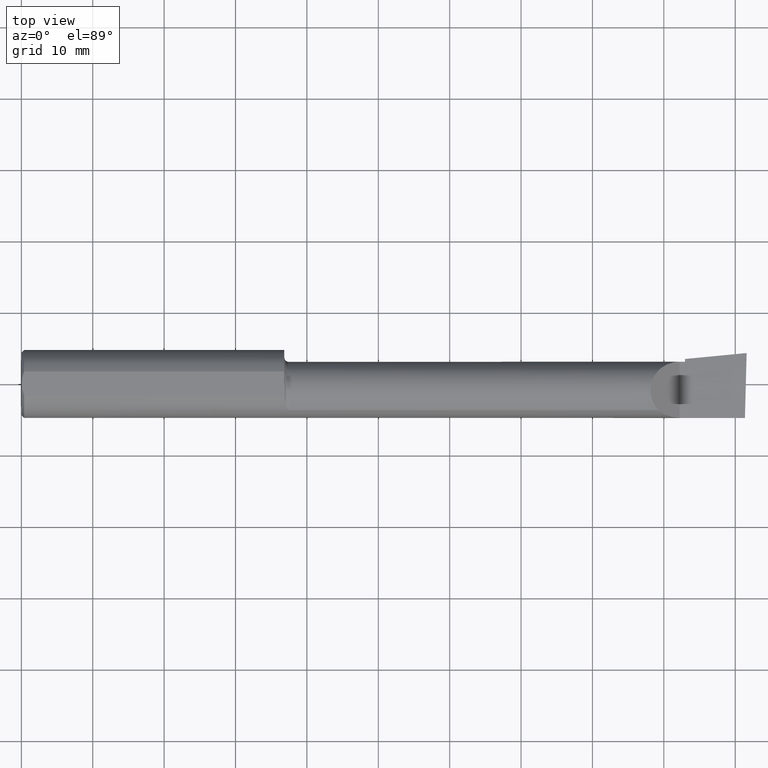
[diagram: clean part render]
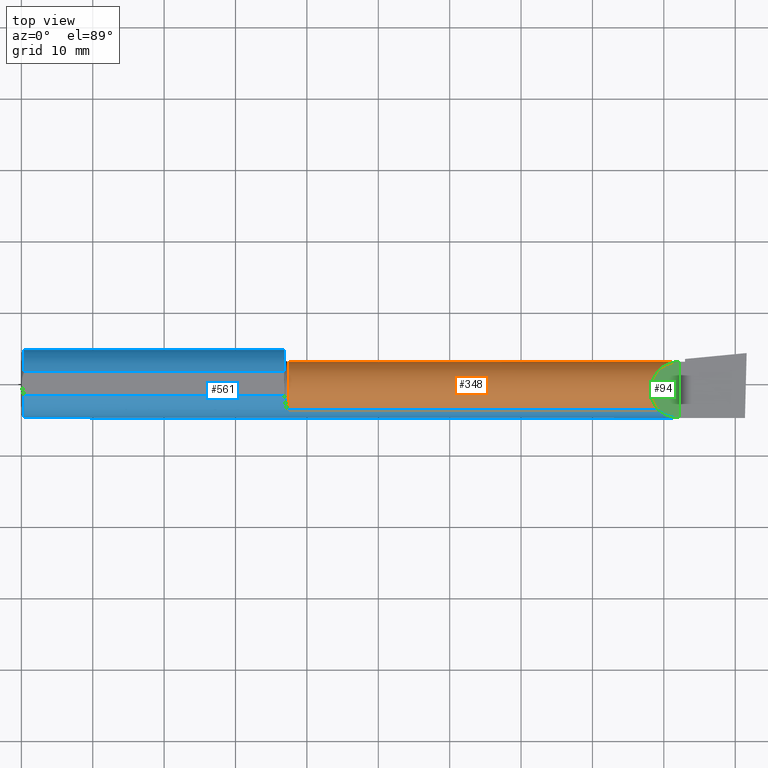
[diagram: same view with three faces highlighted in distinct colors, each labeled with its STEP entity id]
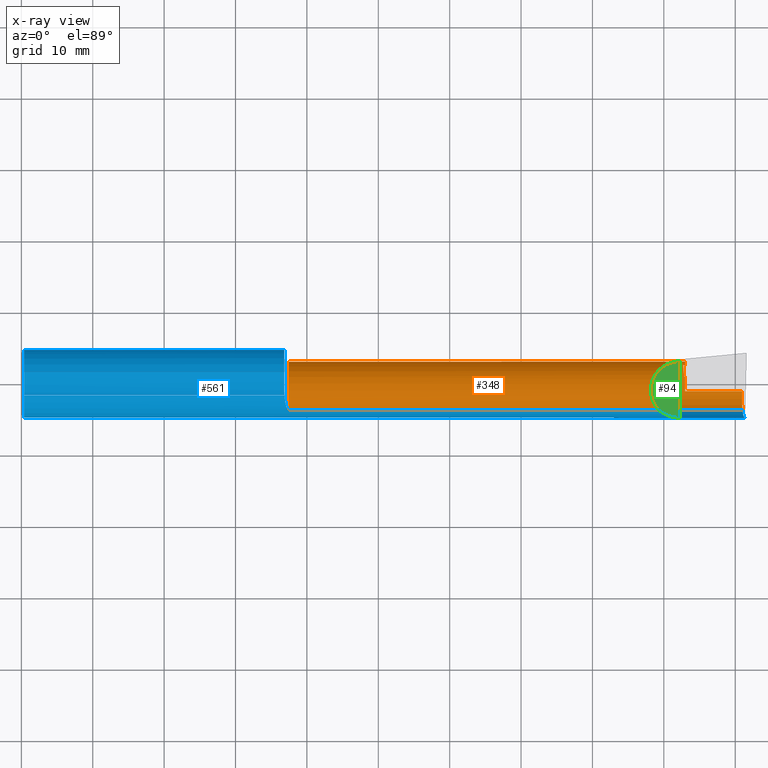
[diagram: x-ray of the same camera — body ghosted, the three highlighted faces saturated]
A machine part, top view with three faces highlighted in distinct colors.
The next image is the same camera in x-ray (body ghosted, the three faces saturated) — at least one of them is partly hidden behind the body in this view.
Their STEP definitions:

[orange] entity #348 — the highlighted cylindrical surface (edge-blend (fillet) strip) has radius 4.0653 mm, axis along (-1, 0, -0).
#3 = ORIENTED_EDGE ( 'NONE', *, *, #588, .F. ) ;
#10 = CARTESIAN_POINT ( 'NONE',  ( 3.653138950307088795, 0.06907189645309849690, -0.1232356714654834345 ) ) ;
#17 = CARTESIAN_POINT ( 'NONE',  ( 3.655646474132026924, 0.04303026584322402343, -0.1383725942388458752 ) ) ;
#28 = CARTESIAN_POINT ( 'NONE',  ( 3.974646882977779239, -0.1156304438478838320, -0.1453804992321581224 ) ) ;
#30 = DIRECTION ( 'NONE',  ( 1.000000000000000000, -4.268512490100411279E-18, 0.000000000000000000 ) ) ;
#36 = EDGE_CURVE ( 'NONE', #358, #354, #172, .T. ) ;
#38 =( BOUNDED_CURVE ( )  B_SPLINE_CURVE ( 3, ( #72, #270, #217, #634 ),
 .UNSPECIFIED., .F., .T. ) 
 B_SPLINE_CURVE_WITH_KNOTS ( ( 4, 4 ),
 ( 2.858349069045824198, 2.874607299638503033 ),
 .UNSPECIFIED. ) 
 CURVE ( )  GEOMETRIC_REPRESENTATION_ITEM ( )  RATIONAL_B_SPLINE_CURVE ( ( 1.000000000000000000, 0.9999779726161355242, 0.9999779726161355242, 1.000000000000000000 ) ) 
 REPRESENTATION_ITEM ( '' )  );
#49 = CYLINDRICAL_SURFACE ( 'NONE', #438, 0.1600499999999999423 ) ;
#61 = CARTESIAN_POINT ( 'NONE',  ( 1.474999999999999867, -0.03739999999999999575, 0.000000000000000000 ) ) ;
#62 = CARTESIAN_POINT ( 'NONE',  ( 4.000000000000000000, -0.03740000000000000269, -0.1600499999999999701 ) ) ;
#72 = CARTESIAN_POINT ( 'NONE',  ( 3.649771696492880135, 0.1040421643832924459, -0.07490071184287706851 ) ) ;
#74 = CARTESIAN_POINT ( 'NONE',  ( 6.831754240405861070E-19, 0.1226499999999999257, 1.790477306702064235E-16 ) ) ;
#76 = CARTESIAN_POINT ( 'NONE',  ( 3.629999999999999893, 0.1226499999999998147, -1.383850883036508279E-16 ) ) ;
#83 = VERTEX_POINT ( 'NONE', #123 ) ;
#100 = FACE_OUTER_BOUND ( 'NONE', #401, .T. ) ;
#108 = EDGE_CURVE ( 'NONE', #157, #550, #482, .T. ) ;
#112 = CARTESIAN_POINT ( 'NONE',  ( 1.474999999999999867, -0.1454917112299472515, -0.1180346748349042907 ) ) ;
#113 = ORIENTED_EDGE ( 'NONE', *, *, #637, .F. ) ;
#118 = CARTESIAN_POINT ( 'NONE',  ( 3.977223734188806592, -0.1454917112299466964, -0.1180346748349052066 ) ) ;
#123 = CARTESIAN_POINT ( 'NONE',  ( 3.655646474132026924, 0.04303026584322402343, -0.1383725942388458752 ) ) ;
#125 = CARTESIAN_POINT ( 'NONE',  ( 2.567499999999999893, -0.1454917112299466964, -0.1180346748349052066 ) ) ;
#130 = CARTESIAN_POINT ( 'NONE',  ( 3.658567235719207833, 0.04367857120546568550, -0.1379942341395748728 ) ) ;
#134 = EDGE_CURVE ( 'NONE', #309, #152, #38, .T. ) ;
#137 = CARTESIAN_POINT ( 'NONE',  ( 3.659999999999999698, 0.04400172171466123355, -0.1378033461200739995 ) ) ;
#152 = VERTEX_POINT ( 'NONE', #275 ) ;
#154 = ORIENTED_EDGE ( 'NONE', *, *, #423, .F. ) ;
#157 = VERTEX_POINT ( 'NONE', #426 ) ;
#163 = DIRECTION ( 'NONE',  ( -1.000000000000000000, 4.268512490100411279E-18, -0.000000000000000000 ) ) ;
#172 = CIRCLE ( 'NONE', #544, 0.1600500000000001921 ) ;
#175 = DIRECTION ( 'NONE',  ( 0.000000000000000000, -1.000000000000000000, 0.000000000000000000 ) ) ;
#186 = DIRECTION ( 'NONE',  ( -4.268512490100411279E-18, -1.000000000000000000, 0.000000000000000000 ) ) ;
#197 = ORIENTED_EDGE ( 'NONE', *, *, #231, .T. ) ;
#204 = EDGE_CURVE ( 'NONE', #553, #474, #381, .T. ) ;
#213 = VECTOR ( 'NONE', #30, 39.37007874015748143 ) ;
#217 = CARTESIAN_POINT ( 'NONE',  ( 3.656688791929345150, 0.1032241022547694537, -0.07643046986498638895 ) ) ;
#219 =( BOUNDED_CURVE ( )  B_SPLINE_CURVE ( 3, ( #633, #383, #486, #76 ),
 .UNSPECIFIED., .F., .F. ) 
 B_SPLINE_CURVE_WITH_KNOTS ( ( 4, 4 ),
 ( 5.541729662751388119, 7.853981633974482790 ),
 .UNSPECIFIED. ) 
 CURVE ( )  GEOMETRIC_REPRESENTATION_ITEM ( )  RATIONAL_B_SPLINE_CURVE ( ( 1.000000000000000000, 0.6019254882129727591, 0.6019254882129727591, 1.000000000000000000 ) ) 
 REPRESENTATION_ITEM ( '' )  );
#231 = EDGE_CURVE ( 'NONE', #309, #83, #409, .T. ) ;
#235 = VECTOR ( 'NONE', #332, 39.37007874015748143 ) ;
#244 =( BOUNDED_CURVE ( )  B_SPLINE_CURVE ( 3, ( #118, #28, #531, #535 ),
 .UNSPECIFIED., .F., .F. ) 
 B_SPLINE_CURVE_WITH_KNOTS ( ( 4, 4 ),
 ( 5.751779107031163463, 6.493234751459365128 ),
 .UNSPECIFIED. ) 
 CURVE ( )  GEOMETRIC_REPRESENTATION_ITEM ( )  RATIONAL_B_SPLINE_CURVE ( ( 1.000000000000000000, 0.9547092712975351336, 0.9547092712975351336, 1.000000000000000000 ) ) 
 REPRESENTATION_ITEM ( '' )  );
#250 = CARTESIAN_POINT ( 'NONE',  ( 0.000000000000000000, -0.03739999999999998881, 0.000000000000000000 ) ) ;
#254 = VECTOR ( 'NONE', #311, 39.37007874015748143 ) ;
#255 = ORIENTED_EDGE ( 'NONE', *, *, #134, .F. ) ;
#258 = EDGE_CURVE ( 'NONE', #474, #152, #629, .T. ) ;
#261 = ORIENTED_EDGE ( 'NONE', *, *, #258, .T. ) ;
#268 = VERTEX_POINT ( 'NONE', #112 ) ;
#270 = CARTESIAN_POINT ( 'NONE',  ( 3.653279282324394472, 0.1036362422309855952, -0.07566725339342778023 ) ) ;
#271 = EDGE_CURVE ( 'NONE', #379, #354, #314, .T. ) ;
#275 = CARTESIAN_POINT ( 'NONE',  ( 3.659999999999999698, 0.1028057716897404633, -0.07719031082256629095 ) ) ;
#291 = CARTESIAN_POINT ( 'NONE',  ( 3.974893613600461340, -0.03740000000000000269, -0.1600499999999999701 ) ) ;
#308 = CIRCLE ( 'NONE', #333, 0.1600499999999996925 ) ;
#309 = VERTEX_POINT ( 'NONE', #656 ) ;
#311 = DIRECTION ( 'NONE',  ( 1.000000000000000000, -4.268512490100411279E-18, 0.000000000000000000 ) ) ;
#314 = LINE ( 'NONE', #62, #343 ) ;
#315 = VERTEX_POINT ( 'NONE', #397 ) ;
#328 = CARTESIAN_POINT ( 'NONE',  ( 3.649771696492880135, 0.1040421643832924459, -0.07490071184287706851 ) ) ;
#332 = DIRECTION ( 'NONE',  ( -1.000000000000000000, 4.268512490100411279E-18, -0.000000000000000000 ) ) ;
#333 = AXIS2_PLACEMENT_3D ( 'NONE', #61, #461, #565 ) ;
#337 = CARTESIAN_POINT ( 'NONE',  ( 3.659999999999999698, -0.03740000000000000269, 0.000000000000000000 ) ) ;
#343 = VECTOR ( 'NONE', #422, 39.37007874015748143 ) ;
#348 = ADVANCED_FACE ( 'NONE', ( #100 ), #49, .T. ) ;
#354 = VERTEX_POINT ( 'NONE', #595 ) ;
#358 = VERTEX_POINT ( 'NONE', #137 ) ;
#363 = ORIENTED_EDGE ( 'NONE', *, *, #108, .T. ) ;
#376 = ORIENTED_EDGE ( 'NONE', *, *, #568, .T. ) ;
#378 = LINE ( 'NONE', #125, #235 ) ;
#379 = VERTEX_POINT ( 'NONE', #291 ) ;
#381 = LINE ( 'NONE', #74, #254 ) ;
#383 = CARTESIAN_POINT ( 'NONE',  ( 3.402393788885675008, -0.02584108761840239049, 0.2276062111143223043 ) ) ;
#397 = CARTESIAN_POINT ( 'NONE',  ( 3.977223734188806592, -0.1454917112299466964, -0.1180346748349052066 ) ) ;
#401 = EDGE_LOOP ( 'NONE', ( #113, #415, #154, #363, #376, #451, #261, #255, #197, #3, #594, #575 ) ) ;
#409 =( BOUNDED_CURVE ( )  B_SPLINE_CURVE ( 3, ( #328, #478, #10, #17 ),
 .UNSPECIFIED., .F., .F. ) 
 B_SPLINE_CURVE_WITH_KNOTS ( ( 4, 4 ),
 ( 0.4870072742240331709, 1.044271234405846016 ),
 .UNSPECIFIED. ) 
 CURVE ( )  GEOMETRIC_REPRESENTATION_ITEM ( )  RATIONAL_B_SPLINE_CURVE ( ( 1.000000000000000000, 0.9742883992832892526, 0.9742883992832892526, 1.000000000000000000 ) ) 
 REPRESENTATION_ITEM ( '' )  );
#415 = ORIENTED_EDGE ( 'NONE', *, *, #630, .T. ) ;
#418 = DIRECTION ( 'NONE',  ( 0.000000000000000000, -1.000000000000000000, 0.000000000000000000 ) ) ;
#422 = DIRECTION ( 'NONE',  ( -1.000000000000000000, 5.691349986800549142E-18, -0.000000000000000000 ) ) ;
#423 = EDGE_CURVE ( 'NONE', #157, #268, #308, .T. ) ;
#426 = CARTESIAN_POINT ( 'NONE',  ( 1.474999999999999867, -0.1454917112299478343, 0.1180346748349037911 ) ) ;
#434 = CARTESIAN_POINT ( 'NONE',  ( 3.657116054444792930, 0.04335475124612595682, -0.1381839842950835506 ) ) ;
#438 = AXIS2_PLACEMENT_3D ( 'NONE', #250, #454, #186 ) ;
#451 = ORIENTED_EDGE ( 'NONE', *, *, #204, .T. ) ;
#454 = DIRECTION ( 'NONE',  ( -1.000000000000000000, 4.268512490100411279E-18, -0.000000000000000000 ) ) ;
#461 = DIRECTION ( 'NONE',  ( -1.000000000000000000, 4.268512490100411279E-18, -0.000000000000000000 ) ) ;
#474 = VERTEX_POINT ( 'NONE', #518 ) ;
#478 = CARTESIAN_POINT ( 'NONE',  ( 3.651129012372396954, 0.08994590001130231549, -0.1015200335213659877 ) ) ;
#482 = LINE ( 'NONE', #533, #213 ) ;
#486 = CARTESIAN_POINT ( 'NONE',  ( 3.467758842172328215, 0.1226499999999999396, 0.1622411578276699295 ) ) ;
#514 = CARTESIAN_POINT ( 'NONE',  ( 3.629999999999999893, 0.1226499999999998147, -1.383850883036508279E-16 ) ) ;
#518 = CARTESIAN_POINT ( 'NONE',  ( 3.659999999999999698, 0.1226500000000001755, 1.790477306702067193E-16 ) ) ;
#526 = CARTESIAN_POINT ( 'NONE',  ( 3.655646474132026924, 0.04303026584322402343, -0.1383725942388458752 ) ) ;
#531 = CARTESIAN_POINT ( 'NONE',  ( 3.973833329693933880, -0.07789060880782654184, -0.1600499999999999701 ) ) ;
#533 = CARTESIAN_POINT ( 'NONE',  ( 2.567499999999999893, -0.1454917112299466964, 0.1180346748349052066 ) ) ;
#535 = CARTESIAN_POINT ( 'NONE',  ( 3.974893613600461340, -0.03740000000000000269, -0.1600499999999999701 ) ) ;
#544 = AXIS2_PLACEMENT_3D ( 'NONE', #337, #638, #175 ) ;
#550 = VERTEX_POINT ( 'NONE', #562 ) ;
#553 = VERTEX_POINT ( 'NONE', #514 ) ;
#562 = CARTESIAN_POINT ( 'NONE',  ( 3.511965325165093521, -0.1454917112299462245, 0.1180346748349056230 ) ) ;
#565 = DIRECTION ( 'NONE',  ( 0.000000000000000000, -1.000000000000000000, 0.000000000000000000 ) ) ;
#568 = EDGE_CURVE ( 'NONE', #550, #553, #219, .T. ) ;
#575 = ORIENTED_EDGE ( 'NONE', *, *, #271, .F. ) ;
#577 = CARTESIAN_POINT ( 'NONE',  ( 3.659999999999999698, -0.03740000000000000269, 0.000000000000000000 ) ) ;
#587 = CARTESIAN_POINT ( 'NONE',  ( 3.659999999999999698, 0.04400172171466123355, -0.1378033461200739995 ) ) ;
#588 = EDGE_CURVE ( 'NONE', #358, #83, #611, .T. ) ;
#590 = AXIS2_PLACEMENT_3D ( 'NONE', #577, #163, #418 ) ;
#594 = ORIENTED_EDGE ( 'NONE', *, *, #36, .T. ) ;
#595 = CARTESIAN_POINT ( 'NONE',  ( 3.659999999999999698, -0.03740000000000000269, -0.1600499999999999701 ) ) ;
#611 =( BOUNDED_CURVE ( )  B_SPLINE_CURVE ( 3, ( #587, #130, #434, #526 ),
 .UNSPECIFIED., .F., .F. ) 
 B_SPLINE_CURVE_WITH_KNOTS ( ( 4, 4 ),
 ( 3.408578007541087196, 3.415613029227634989 ),
 .UNSPECIFIED. ) 
 CURVE ( )  GEOMETRIC_REPRESENTATION_ITEM ( )  RATIONAL_B_SPLINE_CURVE ( ( 1.000000000000000000, 0.9999958757100749773, 0.9999958757100749773, 1.000000000000000000 ) ) 
 REPRESENTATION_ITEM ( '' )  );
#629 = CIRCLE ( 'NONE', #590, 0.1600500000000001921 ) ;
#630 = EDGE_CURVE ( 'NONE', #315, #268, #378, .T. ) ;
#633 = CARTESIAN_POINT ( 'NONE',  ( 3.511965325165093521, -0.1454917112299462245, 0.1180346748349056230 ) ) ;
#634 = CARTESIAN_POINT ( 'NONE',  ( 3.659999999999999698, 0.1028057716897404633, -0.07719031082256629095 ) ) ;
#637 = EDGE_CURVE ( 'NONE', #315, #379, #244, .T. ) ;
#638 = DIRECTION ( 'NONE',  ( -1.000000000000000000, 4.268512490100411279E-18, -0.000000000000000000 ) ) ;
#656 = CARTESIAN_POINT ( 'NONE',  ( 3.649771696492880135, 0.1040421643832924459, -0.07490071184287706851 ) ) ;

[blue] entity #561 — the highlighted cylindrical surface (edge-blend (fillet) strip) has radius 4.7587 mm, axis along (-1, -0, -0).
#2 = CARTESIAN_POINT ( 'NONE',  ( 0.01499999999999999424, 0.000000000000000000, 0.000000000000000000 ) ) ;
#6 = ORIENTED_EDGE ( 'NONE', *, *, #487, .F. ) ;
#7 = CARTESIAN_POINT ( 'NONE',  ( 3.511965325165093521, -0.1454917112299462245, 0.1180346748349056230 ) ) ;
#9 = CARTESIAN_POINT ( 'NONE',  ( 1.450000000000000178, 0.06597272163553663527, 0.1753499999999999781 ) ) ;
#13 = AXIS2_PLACEMENT_3D ( 'NONE', #262, #421, #360 ) ;
#15 = ORIENTED_EDGE ( 'NONE', *, *, #630, .F. ) ;
#18 = EDGE_CURVE ( 'NONE', #601, #157, #642, .T. ) ;
#19 = VERTEX_POINT ( 'NONE', #386 ) ;
#22 = CARTESIAN_POINT ( 'NONE',  ( 1.458327409769773375, -0.1182546610979341717, 0.1455684145307624688 ) ) ;
#27 = CARTESIAN_POINT ( 'NONE',  ( 1.474999999999999867, -0.1454917112299478343, 0.1180346748349037911 ) ) ;
#30 = DIRECTION ( 'NONE',  ( 1.000000000000000000, -4.268512490100411279E-18, 0.000000000000000000 ) ) ;
#35 = CARTESIAN_POINT ( 'NONE',  ( 1.474999999999999867, -0.1454917112299472515, -0.1180346748349042907 ) ) ;
#41 = CARTESIAN_POINT ( 'NONE',  ( 1.450000000000000178, -0.03015080213903878134, -0.1849079544810674769 ) ) ;
#46 = CARTESIAN_POINT ( 'NONE',  ( 1.455627379275792554, -0.1060494212093238825, -0.1548887329701209292 ) ) ;
#53 = LINE ( 'NONE', #253, #266 ) ;
#55 = CARTESIAN_POINT ( 'NONE',  ( 1.467580983404113137, -0.1407350872998855973, 0.1236837232298104716 ) ) ;
#69 = VERTEX_POINT ( 'NONE', #194 ) ;
#70 = CARTESIAN_POINT ( 'NONE',  ( 1.451116380138691264, -0.06597272163553656588, 0.1753499999999999781 ) ) ;
#73 = CARTESIAN_POINT ( 'NONE',  ( 1.453931069367344620, -0.09745462642916734308, 0.1609342754328614566 ) ) ;
#81 = CARTESIAN_POINT ( 'NONE',  ( 1.470462485058697810, -0.1437494271365432619, 0.1201537477313796703 ) ) ;
#84 = CARTESIAN_POINT ( 'NONE',  ( 1.457485333659844340, -0.1155414972264656309, -0.1479248906558518484 ) ) ;
#93 = DIRECTION ( 'NONE',  ( 0.000000000000000000, 0.000000000000000000, 1.000000000000000000 ) ) ;
#96 = LINE ( 'NONE', #548, #243 ) ;
#98 = AXIS2_PLACEMENT_3D ( 'NONE', #107, #558, #620 ) ;
#107 = CARTESIAN_POINT ( 'NONE',  ( 0.01499999999999999424, 0.000000000000000000, 0.000000000000000000 ) ) ;
#108 = EDGE_CURVE ( 'NONE', #157, #550, #482, .T. ) ;
#111 = CYLINDRICAL_SURFACE ( 'NONE', #345, 0.1873499999999999888 ) ;
#112 = CARTESIAN_POINT ( 'NONE',  ( 1.474999999999999867, -0.1454917112299472515, -0.1180346748349042907 ) ) ;
#120 = VERTEX_POINT ( 'NONE', #132 ) ;
#125 = CARTESIAN_POINT ( 'NONE',  ( 2.567499999999999893, -0.1454917112299466964, -0.1180346748349052066 ) ) ;
#132 = CARTESIAN_POINT ( 'NONE',  ( 0.01499999999999997863, -0.06597272163553657975, 0.1753499999999999781 ) ) ;
#143 = CARTESIAN_POINT ( 'NONE',  ( 1.473475335450381341, -0.1454917112299474458, -0.1180346748349042491 ) ) ;
#144 = EDGE_CURVE ( 'NONE', #19, #413, #375, .T. ) ;
#151 = CIRCLE ( 'NONE', #578, 0.1873499999999999888 ) ;
#153 = CARTESIAN_POINT ( 'NONE',  ( 3.586590019116435712, -0.1873500000000000165, 0.04340998088356438217 ) ) ;
#157 = VERTEX_POINT ( 'NONE', #426 ) ;
#165 = ORIENTED_EDGE ( 'NONE', *, *, #353, .F. ) ;
#176 = DIRECTION ( 'NONE',  ( 0.000000000000000000, 0.000000000000000000, 1.000000000000000000 ) ) ;
#185 = EDGE_LOOP ( 'NONE', ( #15, #215, #614, #312, #505, #427, #484, #6, #165, #188, #424, #445 ) ) ;
#188 = ORIENTED_EDGE ( 'NONE', *, *, #144, .T. ) ;
#189 = CARTESIAN_POINT ( 'NONE',  ( 3.985293537526797270, -0.1873499999999999888, -0.04340998088356431972 ) ) ;
#194 = CARTESIAN_POINT ( 'NONE',  ( 1.450000000000000178, -0.03015080213903878134, -0.1849079544810674769 ) ) ;
#196 = CARTESIAN_POINT ( 'NONE',  ( 1.451697995486590953, -0.07541755249017040308, -0.1718998534213994900 ) ) ;
#198 = CARTESIAN_POINT ( 'NONE',  ( 3.990625440078222397, -0.1873499999999999888, -1.699186010220949670E-16 ) ) ;
#203 = DIRECTION ( 'NONE',  ( -1.000000000000000000, -0.000000000000000000, -0.000000000000000000 ) ) ;
#213 = VECTOR ( 'NONE', #30, 39.37007874015748143 ) ;
#215 = ORIENTED_EDGE ( 'NONE', *, *, #327, .T. ) ;
#228 = CARTESIAN_POINT ( 'NONE',  ( 0.000000000000000000, 0.000000000000000000, 0.000000000000000000 ) ) ;
#235 = VECTOR ( 'NONE', #332, 39.37007874015748143 ) ;
#239 = CARTESIAN_POINT ( 'NONE',  ( 1.462916881138098146, -0.1325294370633287866, -0.1325423110575141561 ) ) ;
#243 = VECTOR ( 'NONE', #406, 39.37007874015748143 ) ;
#248 = CARTESIAN_POINT ( 'NONE',  ( 1.450336700870086482, -0.05340758954924600815, -0.1799583179751508555 ) ) ;
#253 = CARTESIAN_POINT ( 'NONE',  ( 1.565719721143680372E-32, -0.1873499999999999610, 1.790477306702064235E-16 ) ) ;
#257 = CARTESIAN_POINT ( 'NONE',  ( 1.468558384071251721, -0.1420205060553834386, 0.1222022583412203656 ) ) ;
#262 = CARTESIAN_POINT ( 'NONE',  ( 1.450000000000000178, 0.000000000000000000, 0.000000000000000000 ) ) ;
#266 = VECTOR ( 'NONE', #203, 39.37007874015748143 ) ;
#268 = VERTEX_POINT ( 'NONE', #112 ) ;
#280 = CARTESIAN_POINT ( 'NONE',  ( 0.01499999999999999424, 0.000000000000000000, -0.1873499999999999888 ) ) ;
#282 = CARTESIAN_POINT ( 'NONE',  ( 1.472867149423749966, -0.1451640434845497540, 0.1184394021563235089 ) ) ;
#283 = DIRECTION ( 'NONE',  ( -1.000000000000000000, -0.000000000000000000, -0.000000000000000000 ) ) ;
#290 = VERTEX_POINT ( 'NONE', #551 ) ;
#293 = VERTEX_POINT ( 'NONE', #585 ) ;
#296 = EDGE_CURVE ( 'NONE', #601, #120, #96, .T. ) ;
#312 = ORIENTED_EDGE ( 'NONE', *, *, #440, .T. ) ;
#315 = VERTEX_POINT ( 'NONE', #397 ) ;
#317 =( BOUNDED_CURVE ( )  B_SPLINE_CURVE ( 3, ( #340, #598, #189, #198 ),
 .UNSPECIFIED., .F., .F. ) 
 B_SPLINE_CURVE_WITH_KNOTS ( ( 4, 4 ),
 ( 0.6791649766279211908, 1.360746882515117662 ),
 .UNSPECIFIED. ) 
 CURVE ( )  GEOMETRIC_REPRESENTATION_ITEM ( )  RATIONAL_B_SPLINE_CURVE ( ( 1.000000000000000000, 0.9616603987079550553, 0.9616603987079550553, 1.000000000000000000 ) ) 
 REPRESENTATION_ITEM ( '' )  );
#327 = EDGE_CURVE ( 'NONE', #315, #293, #317, .T. ) ;
#330 = EDGE_CURVE ( 'NONE', #268, #69, #391, .T. ) ;
#332 = DIRECTION ( 'NONE',  ( -1.000000000000000000, 4.268512490100411279E-18, -0.000000000000000000 ) ) ;
#335 = CARTESIAN_POINT ( 'NONE',  ( 1.471175406146074893, -0.1442942897112287071, 0.1194974872566931939 ) ) ;
#340 = CARTESIAN_POINT ( 'NONE',  ( 3.977223734188806592, -0.1454917112299466964, -0.1180346748349052066 ) ) ;
#345 = AXIS2_PLACEMENT_3D ( 'NONE', #228, #283, #176 ) ;
#347 = CARTESIAN_POINT ( 'NONE',  ( 1.452713316750944506, -0.08594842947873670980, -0.1668827936309212612 ) ) ;
#353 = EDGE_CURVE ( 'NONE', #19, #648, #151, .T. ) ;
#360 = DIRECTION ( 'NONE',  ( 0.000000000000000000, 1.000000000000000000, 0.000000000000000000 ) ) ;
#375 = LINE ( 'NONE', #469, #566 ) ;
#378 = LINE ( 'NONE', #125, #235 ) ;
#382 = CARTESIAN_POINT ( 'NONE',  ( 1.473888626799698010, -0.1454917112299473347, 0.1180346748349044711 ) ) ;
#386 = CARTESIAN_POINT ( 'NONE',  ( 0.01499999999999999424, 0.06597272163553663527, 0.1753499999999999781 ) ) ;
#389 = CIRCLE ( 'NONE', #98, 0.1873499999999999888 ) ;
#391 = B_SPLINE_CURVE_WITH_KNOTS ( 'NONE', 3,
 ( #35, #143, #441, #542, #497, #645, #491, #239, #443, #84, #46, #347, #196, #248, #452, #41 ),
 .UNSPECIFIED., .F., .F.,
 ( 4, 2, 2, 2, 2, 2, 2, 4 ),
 ( 1.966851289224426280E-07, 0.0001144729266691570557, 0.0002287491682093916888, 0.0004573016512898712819, 0.0009144066174508314439, 0.001828616549772751985, 0.002742826482094671767, 0.003657036414416591982 ),
 .UNSPECIFIED. ) ;
#395 = DIRECTION ( 'NONE',  ( -1.000000000000000000, -0.000000000000000000, -0.000000000000000000 ) ) ;
#397 = CARTESIAN_POINT ( 'NONE',  ( 3.977223734188806592, -0.1454917112299466964, -0.1180346748349052066 ) ) ;
#406 = DIRECTION ( 'NONE',  ( -1.000000000000000000, -0.000000000000000000, -0.000000000000000000 ) ) ;
#413 = VERTEX_POINT ( 'NONE', #9 ) ;
#419 = CIRCLE ( 'NONE', #13, 0.1873499999999999888 ) ;
#421 = DIRECTION ( 'NONE',  ( 1.000000000000000000, -4.268512490100411279E-18, 0.000000000000000000 ) ) ;
#424 = ORIENTED_EDGE ( 'NONE', *, *, #468, .F. ) ;
#426 = CARTESIAN_POINT ( 'NONE',  ( 1.474999999999999867, -0.1454917112299478343, 0.1180346748349037911 ) ) ;
#427 = ORIENTED_EDGE ( 'NONE', *, *, #18, .F. ) ;
#429 = CARTESIAN_POINT ( 'NONE',  ( 1.460055759795567898, -0.1247930883238203975, 0.1399914093379783786 ) ) ;
#440 = EDGE_CURVE ( 'NONE', #290, #550, #563, .T. ) ;
#441 = CARTESIAN_POINT ( 'NONE',  ( 1.472144995725004568, -0.1448851833857939253, -0.1187833539262089927 ) ) ;
#443 = CARTESIAN_POINT ( 'NONE',  ( 1.461427394884100117, -0.1284293148232743820, -0.1365241029388000737 ) ) ;
#445 = ORIENTED_EDGE ( 'NONE', *, *, #330, .F. ) ;
#452 = CARTESIAN_POINT ( 'NONE',  ( 1.450000000000000178, -0.04186526254461851726, -0.1829978128711758356 ) ) ;
#468 = EDGE_CURVE ( 'NONE', #69, #413, #419, .T. ) ;
#469 = CARTESIAN_POINT ( 'NONE',  ( 0.000000000000000000, 0.06597272163553663527, 0.1753499999999999781 ) ) ;
#476 = CARTESIAN_POINT ( 'NONE',  ( 1.451116380138691264, -0.06597272163553656588, 0.1753499999999999781 ) ) ;
#482 = LINE ( 'NONE', #533, #213 ) ;
#484 = ORIENTED_EDGE ( 'NONE', *, *, #296, .T. ) ;
#487 = EDGE_CURVE ( 'NONE', #648, #120, #389, .T. ) ;
#491 = CARTESIAN_POINT ( 'NONE',  ( 1.465943198097122702, -0.1383011673991937640, -0.1264147259943145529 ) ) ;
#497 = CARTESIAN_POINT ( 'NONE',  ( 1.469258671360876400, -0.1426776373316546165, -0.1214281201482008965 ) ) ;
#505 = ORIENTED_EDGE ( 'NONE', *, *, #108, .F. ) ;
#509 = CARTESIAN_POINT ( 'NONE',  ( 3.629999999999999893, -0.1873499999999999888, -1.383850883036508279E-16 ) ) ;
#513 = CARTESIAN_POINT ( 'NONE',  ( 1.464940665466612169, -0.1367234982206466665, 0.1281512008975638772 ) ) ;
#532 = EDGE_CURVE ( 'NONE', #293, #290, #53, .T. ) ;
#533 = CARTESIAN_POINT ( 'NONE',  ( 2.567499999999999893, -0.1454917112299466964, 0.1180346748349052066 ) ) ;
#542 = CARTESIAN_POINT ( 'NONE',  ( 1.470088327122037741, -0.1434986192849199982, -0.1204547541528176863 ) ) ;
#548 = CARTESIAN_POINT ( 'NONE',  ( 0.000000000000000000, -0.06597272163553657975, 0.1753499999999999781 ) ) ;
#550 = VERTEX_POINT ( 'NONE', #562 ) ;
#551 = CARTESIAN_POINT ( 'NONE',  ( 3.629999999999999893, -0.1873499999999999888, -1.383850883036508279E-16 ) ) ;
#558 = DIRECTION ( 'NONE',  ( -1.000000000000000000, -0.000000000000000000, -0.000000000000000000 ) ) ;
#561 = ADVANCED_FACE ( 'NONE', ( #570 ), #111, .T. ) ;
#562 = CARTESIAN_POINT ( 'NONE',  ( 3.511965325165093521, -0.1454917112299462245, 0.1180346748349056230 ) ) ;
#563 =( BOUNDED_CURVE ( )  B_SPLINE_CURVE ( 3, ( #509, #153, #613, #7 ),
 .UNSPECIFIED., .F., .F. ) 
 B_SPLINE_CURVE_WITH_KNOTS ( ( 4, 4 ),
 ( 4.712388980384689674, 5.393970886271889142 ),
 .UNSPECIFIED. ) 
 CURVE ( )  GEOMETRIC_REPRESENTATION_ITEM ( )  RATIONAL_B_SPLINE_CURVE ( ( 1.000000000000000000, 0.9616603987079548332, 0.9616603987079548332, 1.000000000000000000 ) ) 
 REPRESENTATION_ITEM ( '' )  );
#566 = VECTOR ( 'NONE', #624, 39.37007874015748143 ) ;
#570 = FACE_OUTER_BOUND ( 'NONE', #185, .T. ) ;
#578 = AXIS2_PLACEMENT_3D ( 'NONE', #2, #395, #93 ) ;
#579 = CARTESIAN_POINT ( 'NONE',  ( 1.452180260693407998, -0.08231188685414686512, 0.1692026421515573364 ) ) ;
#585 = CARTESIAN_POINT ( 'NONE',  ( 3.990625440078222397, -0.1873499999999999888, -1.699186010220949670E-16 ) ) ;
#598 = CARTESIAN_POINT ( 'NONE',  ( 3.980648201915105489, -0.1728409665178087251, -0.08432347972837178629 ) ) ;
#601 = VERTEX_POINT ( 'NONE', #70 ) ;
#613 = CARTESIAN_POINT ( 'NONE',  ( 3.545676520271627385, -0.1728409665178086418, 0.08432347972837209160 ) ) ;
#614 = ORIENTED_EDGE ( 'NONE', *, *, #532, .T. ) ;
#620 = DIRECTION ( 'NONE',  ( 0.000000000000000000, 0.000000000000000000, 1.000000000000000000 ) ) ;
#624 = DIRECTION ( 'NONE',  ( 1.000000000000000000, 0.000000000000000000, 0.000000000000000000 ) ) ;
#630 = EDGE_CURVE ( 'NONE', #315, #268, #378, .T. ) ;
#632 = CARTESIAN_POINT ( 'NONE',  ( 1.463610562096348655, -0.1338335382286875708, 0.1311728947444859572 ) ) ;
#642 = B_SPLINE_CURVE_WITH_KNOTS ( 'NONE', 3,
 ( #476, #579, #73, #22, #429, #632, #513, #55, #257, #81, #335, #282, #382, #27 ),
 .UNSPECIFIED., .F., .F.,
 ( 4, 2, 2, 2, 2, 2, 4 ),
 ( 5.633523616098152958E-07, 0.001319819381107025348, 0.001979447395479732360, 0.002309261402666086191, 0.002474168406259263323, 0.002556621908055846035, 0.002639075409852428746 ),
 .UNSPECIFIED. ) ;
#645 = CARTESIAN_POINT ( 'NONE',  ( 1.467060058352116059, -0.1401415676386942866, -0.1243666343873849472 ) ) ;
#648 = VERTEX_POINT ( 'NONE', #280 ) ;

[green] entity #94 — the highlighted planar face has unit normal (-0.7071, 0, -0.7071).
#1 = ORIENTED_EDGE ( 'NONE', *, *, #440, .F. ) ;
#7 = CARTESIAN_POINT ( 'NONE',  ( 3.511965325165093521, -0.1454917112299462245, 0.1180346748349056230 ) ) ;
#11 = EDGE_LOOP ( 'NONE', ( #238, #1, #240 ) ) ;
#76 = CARTESIAN_POINT ( 'NONE',  ( 3.629999999999999893, 0.1226499999999998147, -1.383850883036508279E-16 ) ) ;
#77 = AXIS2_PLACEMENT_3D ( 'NONE', #129, #635, #178 ) ;
#94 = ADVANCED_FACE ( 'NONE', ( #530 ), #433, .F. ) ;
#129 = CARTESIAN_POINT ( 'NONE',  ( 3.629999999999999893, -0.2500000000000000555, -1.383850883036508279E-16 ) ) ;
#153 = CARTESIAN_POINT ( 'NONE',  ( 3.586590019116435712, -0.1873500000000000165, 0.04340998088356438217 ) ) ;
#178 = DIRECTION ( 'NONE',  ( -0.7071067811865507924, 0.000000000000000000, 0.7071067811865443531 ) ) ;
#219 =( BOUNDED_CURVE ( )  B_SPLINE_CURVE ( 3, ( #633, #383, #486, #76 ),
 .UNSPECIFIED., .F., .F. ) 
 B_SPLINE_CURVE_WITH_KNOTS ( ( 4, 4 ),
 ( 5.541729662751388119, 7.853981633974482790 ),
 .UNSPECIFIED. ) 
 CURVE ( )  GEOMETRIC_REPRESENTATION_ITEM ( )  RATIONAL_B_SPLINE_CURVE ( ( 1.000000000000000000, 0.6019254882129727591, 0.6019254882129727591, 1.000000000000000000 ) ) 
 REPRESENTATION_ITEM ( '' )  );
#238 = ORIENTED_EDGE ( 'NONE', *, *, #568, .F. ) ;
#240 = ORIENTED_EDGE ( 'NONE', *, *, #385, .T. ) ;
#290 = VERTEX_POINT ( 'NONE', #551 ) ;
#383 = CARTESIAN_POINT ( 'NONE',  ( 3.402393788885675008, -0.02584108761840239049, 0.2276062111143223043 ) ) ;
#385 = EDGE_CURVE ( 'NONE', #290, #553, #446, .T. ) ;
#402 = CARTESIAN_POINT ( 'NONE',  ( 3.629999999999999893, -0.2500000000000000555, -1.383850883036508279E-16 ) ) ;
#433 = PLANE ( 'NONE',  #77 ) ;
#440 = EDGE_CURVE ( 'NONE', #290, #550, #563, .T. ) ;
#446 = LINE ( 'NONE', #402, #523 ) ;
#486 = CARTESIAN_POINT ( 'NONE',  ( 3.467758842172328215, 0.1226499999999999396, 0.1622411578276699295 ) ) ;
#509 = CARTESIAN_POINT ( 'NONE',  ( 3.629999999999999893, -0.1873499999999999888, -1.383850883036508279E-16 ) ) ;
#514 = CARTESIAN_POINT ( 'NONE',  ( 3.629999999999999893, 0.1226499999999998147, -1.383850883036508279E-16 ) ) ;
#523 = VECTOR ( 'NONE', #602, 39.37007874015748143 ) ;
#530 = FACE_OUTER_BOUND ( 'NONE', #11, .T. ) ;
#550 = VERTEX_POINT ( 'NONE', #562 ) ;
#551 = CARTESIAN_POINT ( 'NONE',  ( 3.629999999999999893, -0.1873499999999999888, -1.383850883036508279E-16 ) ) ;
#553 = VERTEX_POINT ( 'NONE', #514 ) ;
#562 = CARTESIAN_POINT ( 'NONE',  ( 3.511965325165093521, -0.1454917112299462245, 0.1180346748349056230 ) ) ;
#563 =( BOUNDED_CURVE ( )  B_SPLINE_CURVE ( 3, ( #509, #153, #613, #7 ),
 .UNSPECIFIED., .F., .F. ) 
 B_SPLINE_CURVE_WITH_KNOTS ( ( 4, 4 ),
 ( 4.712388980384689674, 5.393970886271889142 ),
 .UNSPECIFIED. ) 
 CURVE ( )  GEOMETRIC_REPRESENTATION_ITEM ( )  RATIONAL_B_SPLINE_CURVE ( ( 1.000000000000000000, 0.9616603987079548332, 0.9616603987079548332, 1.000000000000000000 ) ) 
 REPRESENTATION_ITEM ( '' )  );
#568 = EDGE_CURVE ( 'NONE', #550, #553, #219, .T. ) ;
#602 = DIRECTION ( 'NONE',  ( -0.000000000000000000, 1.000000000000000000, -0.000000000000000000 ) ) ;
#613 = CARTESIAN_POINT ( 'NONE',  ( 3.545676520271627385, -0.1728409665178086418, 0.08432347972837209160 ) ) ;
#633 = CARTESIAN_POINT ( 'NONE',  ( 3.511965325165093521, -0.1454917112299462245, 0.1180346748349056230 ) ) ;
#635 = DIRECTION ( 'NONE',  ( -0.7071067811865443531, 0.000000000000000000, -0.7071067811865507924 ) ) ;